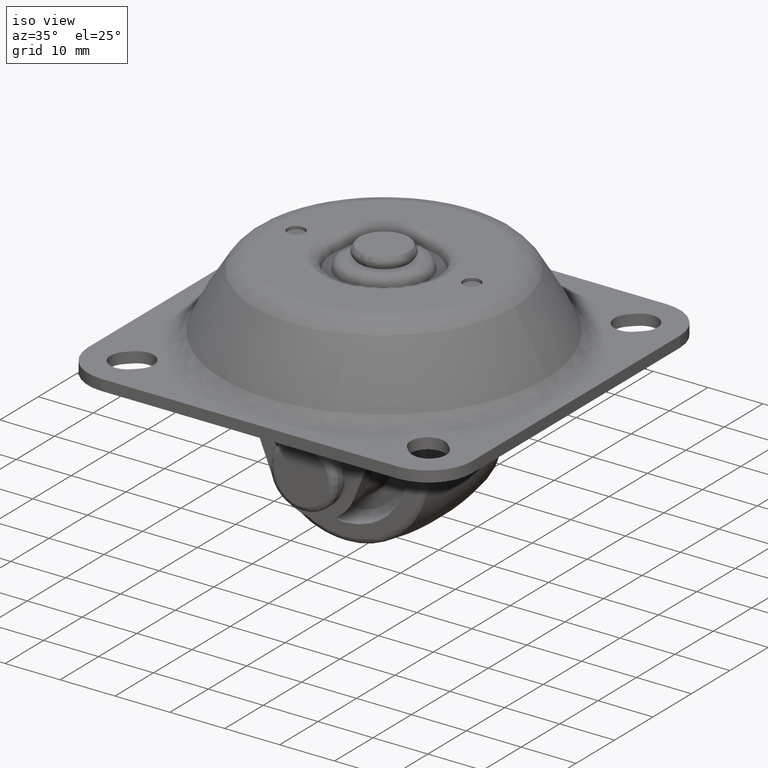
[diagram: clean part render]
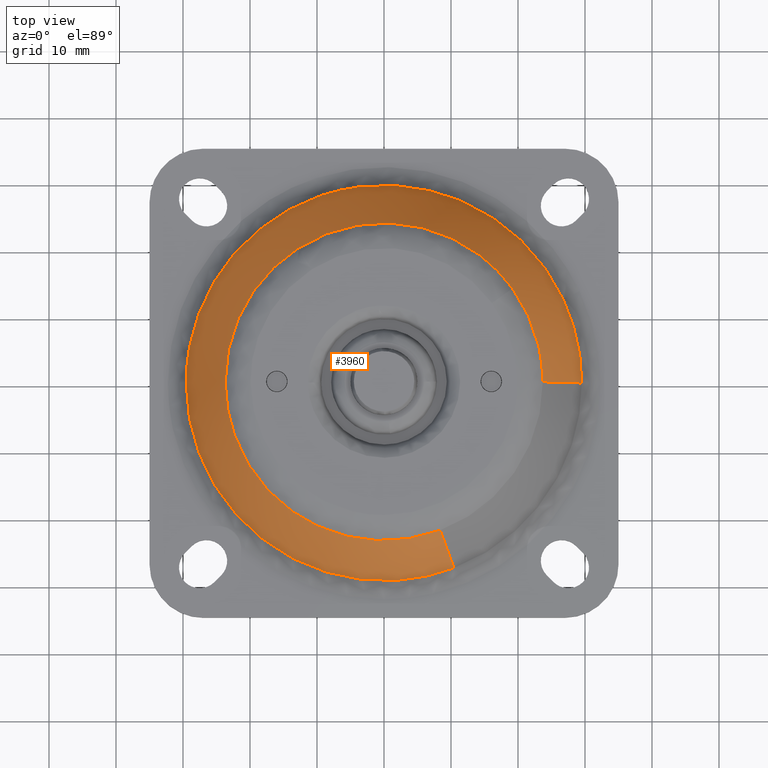
[diagram: tour spotlight — one face highlighted and labeled with its STEP entity id]
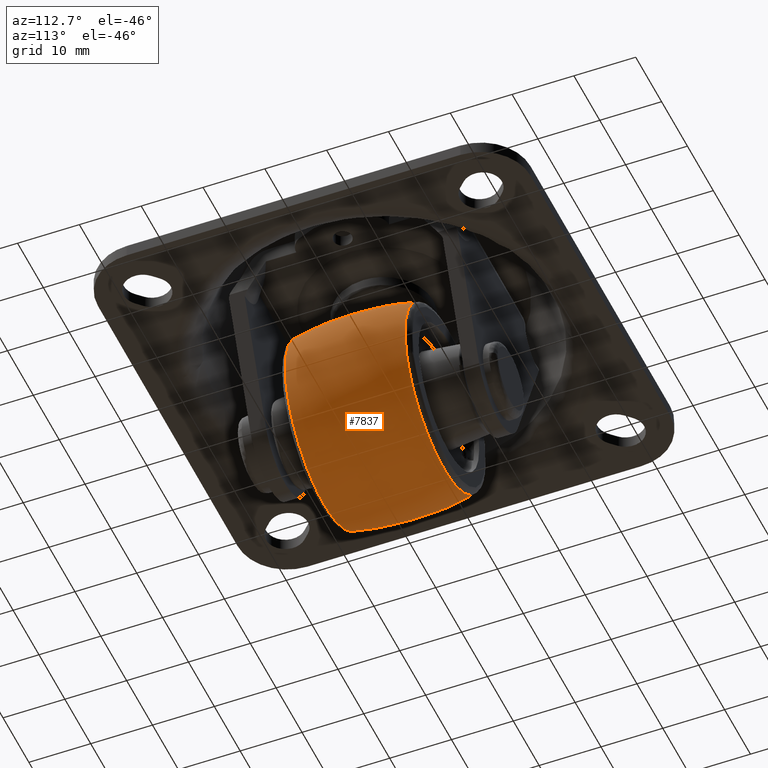
[diagram: tour spotlight — one face highlighted and labeled with its STEP entity id]
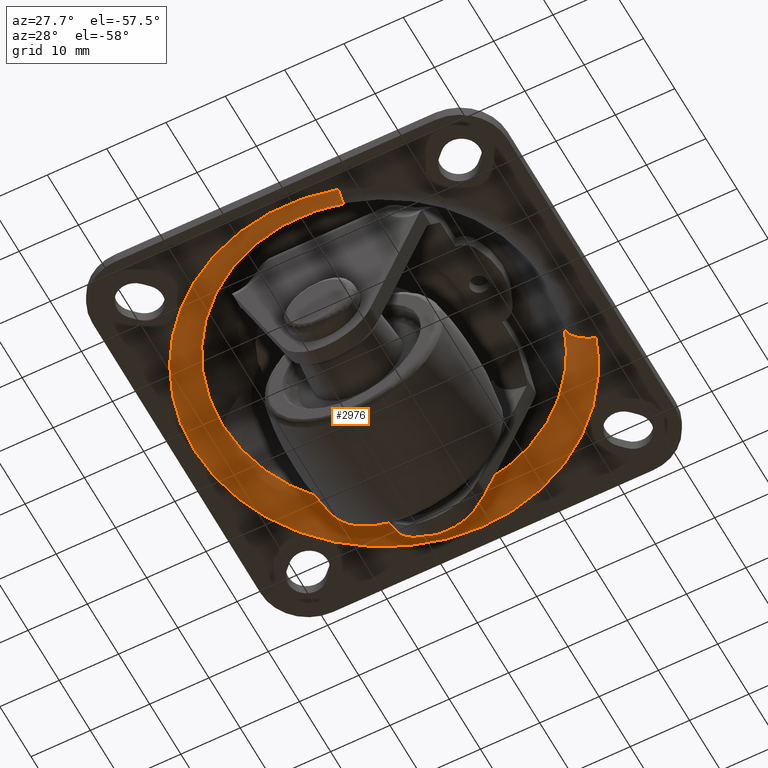
[diagram: tour spotlight — one face highlighted and labeled with its STEP entity id]
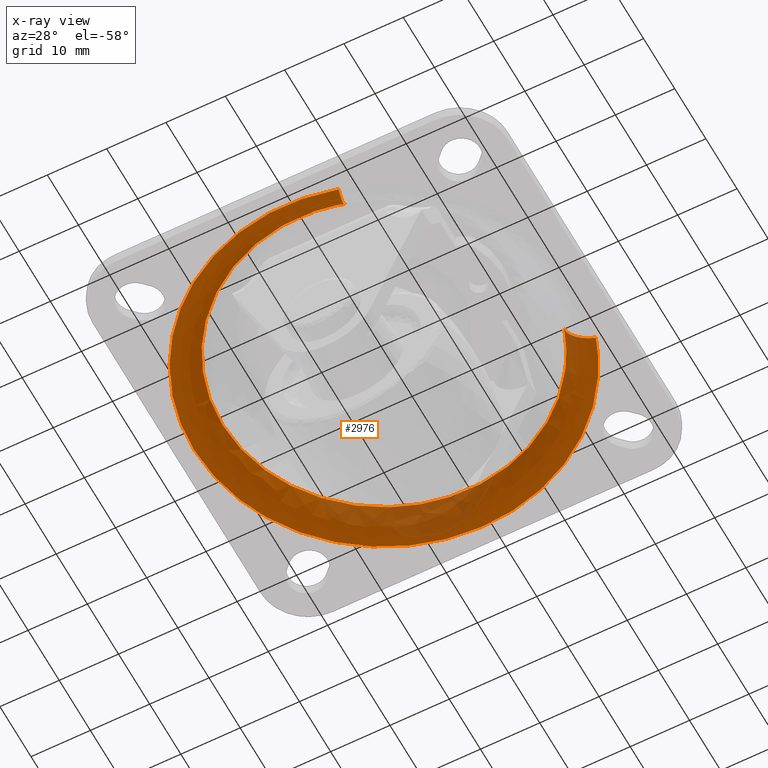
[diagram: x-ray of the same camera — body ghosted, this tour face saturated]
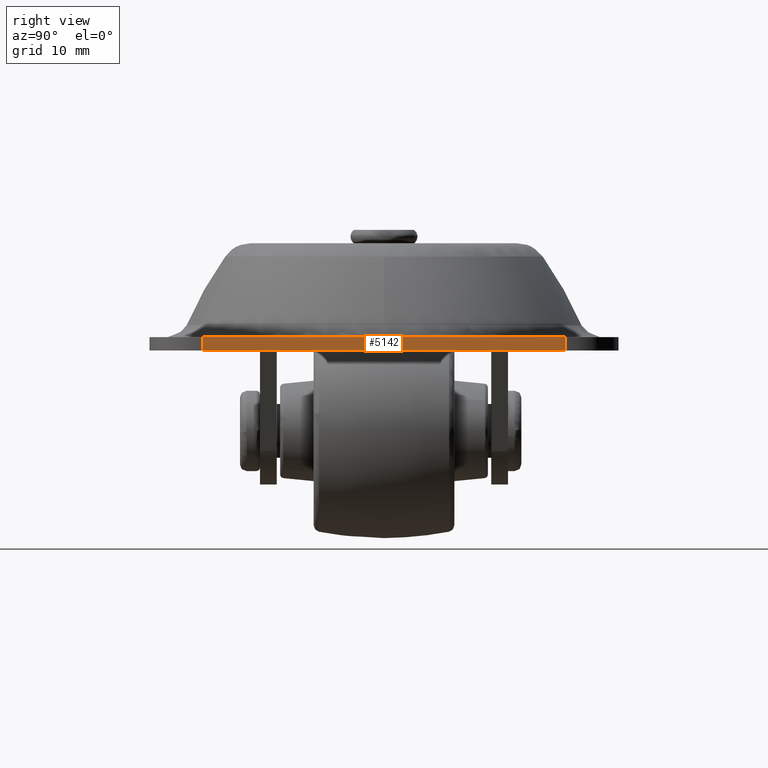
[diagram: tour spotlight — one face highlighted and labeled with its STEP entity id]
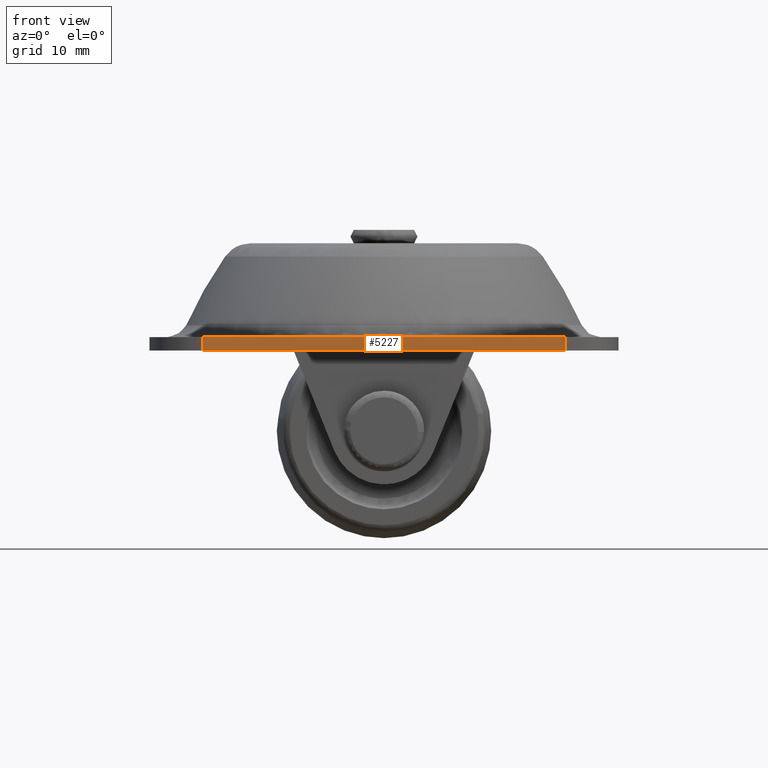
[diagram: tour spotlight — one face highlighted and labeled with its STEP entity id]
A machine part: a face-by-face anatomy tour. The part has 184 B-rep faces; the first image is the clean iso view, then the 5 largest visible faces are spotlighted one at a time (largest first), each with its STEP entity span.

Face 1 — top view, entity #3960. In plain terms, the highlighted face is a freeform B-spline surface patch.
Definition (entity closure, byte-faithful):
#2278=CARTESIAN_POINT('',(-12.814746471438600,19.944679892121378,26.026962958469110));
#2279=VERTEX_POINT('',#2278);
#2280=CARTESIAN_POINT('',(19.179129287009381,13.934453077141571,26.026962970549022));
#2281=VERTEX_POINT('',#2280);
#2282=CARTESIAN_POINT('',(-12.814746471438600,19.944679892121378,26.026962958469110));
#2283=CARTESIAN_POINT('',(-11.399841660080080,20.854147050903741,26.026962957915590));
#2284=CARTESIAN_POINT('',(-9.299466324523078,21.906507061518639,26.026962957369360));
#2285=CARTESIAN_POINT('',(-6.233534431240479,22.911781831508389,26.026962957063610));
#2286=CARTESIAN_POINT('',(-3.584441108219649,23.502309804431292,26.026962957056512));
#2287=CARTESIAN_POINT('',(-0.551372528046693,23.773684798666832,26.026962957423450));
#2288=CARTESIAN_POINT('',(2.955646143607061,23.609644243812671,26.026962958289410));
#2289=CARTESIAN_POINT('',(5.900150005857563,23.029452214701880,26.026962959426331));
#2290=CARTESIAN_POINT('',(8.650601101898888,22.112744179074429,26.026962960834808));
#2291=CARTESIAN_POINT('',(11.129714457171589,21.008013400750929,26.026962962362770));
#2292=CARTESIAN_POINT('',(13.487149254365461,19.564879212453882,26.026962964178121));
#2293=CARTESIAN_POINT('',(16.388732447240422,17.277719409135312,26.026962966886270));
#2294=CARTESIAN_POINT('',(18.108416497518281,15.408862076588051,26.026962968966359));
#2295=CARTESIAN_POINT('',(19.179129287009381,13.934453077141571,26.026962970549022));
#2296=B_SPLINE_CURVE_WITH_KNOTS('',3,(#2282,#2283,#2284,#2285,#2286,#2287,#2288,#2289,#2290,#2291,#2292,#2293,#2294,#2295),.UNSPECIFIED.,.F.,.U.,(4,1,1,1,1,1,1,1,1,1,1,4),(0.000000044672234,5.045872818593004,7.008171210059707,9.671289411017870,13.175396222911330,16.118843243847000,20.183528909106069,22.145827019844610,24.808954478988131,28.313052315303491,30.415505435606299,35.881880140197509),.UNSPECIFIED.);
#2297=EDGE_CURVE('',#2279,#2281,#2296,.T.);
#2380=CARTESIAN_POINT('',(-23.706707555652550,0.0,26.026962958384399));
#2381=VERTEX_POINT('',#2380);
#2382=CARTESIAN_POINT('',(-23.706707555652550,0.0,26.026962958384399));
#2383=CARTESIAN_POINT('',(-23.706809154230939,1.296077946736812,26.026962958384409));
#2384=CARTESIAN_POINT('',(-23.508813002978719,3.703039272591441,26.026962958385941));
#2385=CARTESIAN_POINT('',(-22.747500231845269,6.892571728340383,26.026962958391820));
#2386=CARTESIAN_POINT('',(-21.574038727750679,10.017258152530580,26.026962958400990));
#2387=CARTESIAN_POINT('',(-20.089515110318661,12.735559019980220,26.026962958412540));
#2388=CARTESIAN_POINT('',(-17.947350728257039,15.610187102045870,26.026962958429060));
#2389=CARTESIAN_POINT('',(-15.636008160558200,17.941823928240400,26.026962958447442));
#2390=CARTESIAN_POINT('',(-13.697461466469910,19.377550614174979,26.026962958461930));
#2391=CARTESIAN_POINT('',(-12.814746471438600,19.944679892121378,26.026962958469110));
#2392=B_SPLINE_CURVE_WITH_KNOTS('',3,(#2382,#2383,#2384,#2385,#2386,#2387,#2388,#2389,#2390,#2391),.UNSPECIFIED.,.F.,.U.,(4,1,1,1,1,1,1,4),(8.315840E-009,3.888222809079110,7.221004059536504,9.813167379961227,13.886519619920911,16.478682940345550,20.552072638058458,23.699686991565869),.UNSPECIFIED.);
#2393=EDGE_CURVE('',#2381,#2279,#2392,.T.);
#2395=CARTESIAN_POINT('',(8.375598990515535,-22.177826453349951,26.027003537547621));
#2396=VERTEX_POINT('',#2395);
#2397=CARTESIAN_POINT('',(8.375598990515535,-22.177826453349951,26.027003537547621));
#2398=CARTESIAN_POINT('',(7.259866313991982,-22.599263702841569,26.027002831976208));
#2399=CARTESIAN_POINT('',(4.907227992291301,-23.290036653473390,26.027001227137401));
#2400=CARTESIAN_POINT('',(1.052140564646334,-23.797862723480840,26.026998228176140));
#2401=CARTESIAN_POINT('',(-2.717392802082280,-23.651236627176122,26.026994915238369));
#2402=CARTESIAN_POINT('',(-5.999618674227792,-22.994852598450532,26.026991717774990));
#2403=CARTESIAN_POINT('',(-9.005893717107938,-22.005038875866610,26.026988559216900));
#2404=CARTESIAN_POINT('',(-11.752845322002440,-20.677642305191121,26.026985422876361));
#2405=CARTESIAN_POINT('',(-14.731898031312481,-18.684034627144690,26.026981693734349));
#2406=CARTESIAN_POINT('',(-17.214306946691341,-16.431500928184850,26.026978236458898));
#2407=CARTESIAN_POINT('',(-19.212918709000750,-13.974617569732320,26.026975072344499));
#2408=CARTESIAN_POINT('',(-20.919996499417859,-11.310141605037090,26.026972034922409));
#2409=CARTESIAN_POINT('',(-22.178295369728001,-8.594585097717165,26.026969351370461));
#2410=CARTESIAN_POINT('',(-23.131006702283919,-5.451317757732483,26.026966676308501));
#2411=CARTESIAN_POINT('',(-23.605826198907451,-2.743145092538184,26.026964667672829));
#2412=CARTESIAN_POINT('',(-23.706719233503279,-0.834862491443970,26.026963452310579));
#2413=CARTESIAN_POINT('',(-23.706707555652550,0.0,26.026962958384399));
#2414=B_SPLINE_CURVE_WITH_KNOTS('',3,(#2397,#2398,#2399,#2400,#2401,#2402,#2403,#2404,#2405,#2406,#2407,#2408,#2409,#2410,#2411,#2412,#2413),.UNSPECIFIED.,.F.,.U.,(4,1,1,1,1,1,1,1,1,1,1,1,1,1,4),(0.000000017786803,3.578018711368536,7.334973940711727,11.628636212129640,14.848884114467380,17.353503234740661,21.110485746047679,23.972841803344529,28.087621599785908,31.128949837978229,33.454689600705947,37.569438683884037,40.074079247458499,43.294337360693802,45.798932758562898),.UNSPECIFIED.);
#2415=EDGE_CURVE('',#2396,#2381,#2414,.T.);
#2417=CARTESIAN_POINT('',(23.706707534813990,0.0,26.026962988338688));
#2418=VERTEX_POINT('',#2417);
#2433=CARTESIAN_POINT('',(19.179129287009381,13.934453077141571,26.026962970549022));
#2434=CARTESIAN_POINT('',(20.091329297155191,12.679295898300300,26.026962972171528));
#2435=CARTESIAN_POINT('',(21.273554537562610,10.661512226014009,26.026962974769550));
#2436=CARTESIAN_POINT('',(22.593891008966359,7.383253572604097,26.026962978964828));
#2437=CARTESIAN_POINT('',(23.466429832310570,4.072904132199395,26.026962983181640));
#2438=CARTESIAN_POINT('',(23.706849535331571,1.435241015747134,26.026962986526151));
#2439=CARTESIAN_POINT('',(23.706707534813990,0.0,26.026962988338688));
#2440=B_SPLINE_CURVE_WITH_KNOTS('',3,(#2433,#2434,#2435,#2436,#2437,#2438,#2439),.UNSPECIFIED.,.F.,.U.,(4,1,1,1,4),(7.791625E-009,4.654808790815187,6.982221780988477,10.589682902542890,14.895378605375999),.UNSPECIFIED.);
#2441=EDGE_CURVE('',#2281,#2418,#2440,.T.);
#2526=CARTESIAN_POINT('',(26.704889106051859,12.566366947067291,15.769867219209480));
#2527=VERTEX_POINT('',#2526);
#2528=CARTESIAN_POINT('',(-9.398859040962224,27.977242843349931,15.769867695238990));
#2529=VERTEX_POINT('',#2528);
#2530=CARTESIAN_POINT('',(26.704889106051859,12.566366947067291,15.769867219209480));
#2531=CARTESIAN_POINT('',(26.062146822113071,13.932495768370361,15.769867255891180));
#2532=CARTESIAN_POINT('',(24.843275818079341,16.078067095498149,15.769867313953251));
#2533=CARTESIAN_POINT('',(22.765976469384430,18.858767003468259,15.769867390276080));
#2534=CARTESIAN_POINT('',(20.535906443037330,21.295925192515600,15.769867458052680));
#2535=CARTESIAN_POINT('',(17.816471655538329,23.635103704958361,15.769867524353749));
#2536=CARTESIAN_POINT('',(14.300809361433140,25.936691332179720,15.769867591400139));
#2537=CARTESIAN_POINT('',(10.484114045946210,27.708869060177580,15.769867645418881));
#2538=CARTESIAN_POINT('',(6.395170229576658,28.902664158991769,15.769867685081300));
#2539=CARTESIAN_POINT('',(2.904731130752902,29.431950726443770,15.769867706284730));
#2540=CARTESIAN_POINT('',(-0.563037837651208,29.569570359899409,15.769867717319951));
#2541=CARTESIAN_POINT('',(-4.587509849405022,29.282755800743551,15.769867718590790));
#2542=CARTESIAN_POINT('',(-7.649705162869902,28.565082512721609,15.769867706652979));
#2543=CARTESIAN_POINT('',(-9.398859040962224,27.977242843349931,15.769867695238990));
#2544=B_SPLINE_CURVE_WITH_KNOTS('',3,(#2530,#2531,#2532,#2533,#2534,#2535,#2536,#2537,#2538,#2539,#2540,#2541,#2542,#2543),.UNSPECIFIED.,.F.,.U.,(4,1,1,1,1,1,1,1,1,1,1,4),(0.000000034210657,4.529315999778127,7.381130818475945,10.400699983869041,14.426791052742320,18.117373475398612,22.982190972600339,27.008252113444101,30.866593468089391,33.550647482974682,37.408988837619930,42.944827289852221),.UNSPECIFIED.);
#2545=EDGE_CURVE('',#2527,#2529,#2544,.T.);
#2628=CARTESIAN_POINT('',(-29.513804708767601,0.0,15.769867695253300));
#2629=VERTEX_POINT('',#2628);
#2630=CARTESIAN_POINT('',(-9.398859040962224,27.977242843349931,15.769867695238990));
#2631=CARTESIAN_POINT('',(-10.897612673797520,27.473864636459840,15.769867695240080));
#2632=CARTESIAN_POINT('',(-13.062664963260630,26.546892910876650,15.769867695241579));
#2633=CARTESIAN_POINT('',(-16.176572984944769,24.748391874920220,15.769867695243841));
#2634=CARTESIAN_POINT('',(-18.588484799676721,23.004424581150470,15.769867695245530));
#2635=CARTESIAN_POINT('',(-21.427354502567191,20.422560253245269,15.769867695247459));
#2636=CARTESIAN_POINT('',(-23.629551053076838,17.814772652250252,15.769867695249371));
#2637=CARTESIAN_POINT('',(-25.539209810969489,14.881146251654970,15.769867695250349));
#2638=CARTESIAN_POINT('',(-27.141013699149561,11.820489947013909,15.769867695251660));
#2639=CARTESIAN_POINT('',(-28.469428554696439,8.160901605152231,15.769867695252660));
#2640=CARTESIAN_POINT('',(-29.327372676529190,4.024400069234487,15.769867695252920));
#2641=CARTESIAN_POINT('',(-29.513872544301190,1.389385063954212,15.769867695253639));
#2642=CARTESIAN_POINT('',(-29.513804708767601,0.0,15.769867695253300));
#2643=B_SPLINE_CURVE_WITH_KNOTS('',3,(#2630,#2631,#2632,#2633,#2634,#2635,#2636,#2637,#2638,#2639,#2640,#2641,#2642),.UNSPECIFIED.,.F.,.U.,(4,1,1,1,1,1,1,1,1,1,4),(0.000000027877192,4.743060173342869,7.042747854486130,10.779718413863570,13.654314984528870,18.541087287826681,20.984511149451230,24.146556527760168,28.889645552025751,32.626621689948522,36.794769704779753),.UNSPECIFIED.);
#2644=EDGE_CURVE('',#2529,#2629,#2643,.T.);
#2717=CARTESIAN_POINT('',(29.513805084109869,0.0,15.769866860375220));
#2718=VERTEX_POINT('',#2717);
#2719=CARTESIAN_POINT('',(29.513805084109869,0.0,15.769866860375220));
#2720=CARTESIAN_POINT('',(29.513878000029180,1.419786428104158,15.769866900537609));
#2721=CARTESIAN_POINT('',(29.352464892649529,3.650838084980651,15.769866963842141));
#2722=CARTESIAN_POINT('',(28.553630370082988,7.907177130950014,15.769867085199881));
#2723=CARTESIAN_POINT('',(27.597605424667901,10.670086990499341,15.769867164500100));
#2724=CARTESIAN_POINT('',(26.704889106051859,12.566366947067291,15.769867219209480));
#2725=B_SPLINE_CURVE_WITH_KNOTS('',3,(#2719,#2720,#2721,#2722,#2723,#2724),.UNSPECIFIED.,.F.,.U.,(4,1,1,4),(1.781542E-009,4.259352476794456,6.693261273479543,12.980874957889529),.UNSPECIFIED.);
#2726=EDGE_CURVE('',#2718,#2527,#2725,.T.);
#2728=CARTESIAN_POINT('',(10.427255878586360,-27.610431094556009,15.769909070707540));
#2729=VERTEX_POINT('',#2728);
#2745=CARTESIAN_POINT('',(-29.513804708767601,0.0,15.769867695253300));
#2746=CARTESIAN_POINT('',(-29.513906697731461,-1.633309240018671,15.769868486607100));
#2747=CARTESIAN_POINT('',(-29.238897963163751,-4.937030701457908,15.769870280203820));
#2748=CARTESIAN_POINT('',(-28.156692366689089,-9.159344543754383,15.769873084712829));
#2749=CARTESIAN_POINT('',(-26.818351543886688,-12.427341030890060,15.769875606342810));
#2750=CARTESIAN_POINT('',(-25.351785499035390,-15.224141997249051,15.769877989532921));
#2751=CARTESIAN_POINT('',(-23.591153587486239,-17.850807015517251,15.769880496408231));
#2752=CARTESIAN_POINT('',(-21.508833474319012,-20.276468800973561,15.769883131375590));
#2753=CARTESIAN_POINT('',(-19.418577486010641,-22.283976764419940,15.769885569287400));
#2754=CARTESIAN_POINT('',(-16.711087146923688,-24.433012120955659,15.769888508427590));
#2755=CARTESIAN_POINT('',(-13.354652531741319,-26.439605641727510,15.769891833425630));
#2756=CARTESIAN_POINT('',(-9.847365065400421,-27.887984872761830,15.769894993679429));
#2757=CARTESIAN_POINT('',(-6.812162062807977,-28.761903234247811,15.769897544668289));
#2758=CARTESIAN_POINT('',(-3.707599930069016,-29.346212470371441,15.769900003943469));
#2759=CARTESIAN_POINT('',(-0.367855872449164,-29.583524509408239,15.769902459930950));
#2760=CARTESIAN_POINT('',(3.382325198569396,-29.396596289514740,15.769904998047810));
#2761=CARTESIAN_POINT('',(6.937104339026487,-28.770548988004471,15.769907186421101));
#2762=CARTESIAN_POINT('',(9.350742074283511,-28.017007580818401,15.769908513131790));
#2763=CARTESIAN_POINT('',(10.427255878586360,-27.610431094556009,15.769909070707540));
#2764=B_SPLINE_CURVE_WITH_KNOTS('',3,(#2745,#2746,#2747,#2748,#2749,#2750,#2751,#2752,#2753,#2754,#2755,#2756,#2757,#2758,#2759,#2760,#2761,#2762,#2763),.UNSPECIFIED.,.F.,.U.,(4,1,1,1,1,1,1,1,1,1,1,1,1,1,1,1,4),(0.000000054723827,4.899917511250429,9.911253110368797,13.029402141959910,15.479379088816970,19.377076690394350,22.495218095169260,25.056572698352280,28.063349328710121,32.851887598443412,36.749597116070497,39.422292613739387,42.317719041131753,46.215410261909511,49.444937254408423,53.565356838816513,57.017558934343633),.UNSPECIFIED.);
#2765=EDGE_CURVE('',#2629,#2729,#2764,.T.);
#3901=CARTESIAN_POINT('',(10.511529589358224,-27.833510733366431,15.232875004853293));
#3902=CARTESIAN_POINT('',(9.587381691434871,-25.386456742089209,21.197625484907540));
#3903=CARTESIAN_POINT('',(8.255845357840022,-21.860677689866382,26.509523820718666));
#3904=CARTESIAN_POINT('',(5.430885496787706,-29.752253260087343,15.232875004853293));
#3905=CARTESIAN_POINT('',(4.953415365247581,-27.136508132315544,21.197625484907544));
#3906=CARTESIAN_POINT('',(4.265463978050121,-23.367674502029310,26.509523820718673));
#3907=CARTESIAN_POINT('',(0.0,-29.752253260087347,15.232875004853293));
#3908=CARTESIAN_POINT('',(0.0,-27.136508132315548,21.197625484907547));
#3909=CARTESIAN_POINT('',(0.0,-23.367674502029313,26.509523820718666));
#3910=CARTESIAN_POINT('',(-29.752253260087347,-29.752253260087347,15.232875004853300));
#3911=CARTESIAN_POINT('',(-27.136508132315541,-27.136508132315541,21.197625484907554));
#3912=CARTESIAN_POINT('',(-23.367674502029306,-23.367674502029306,26.509523820718666));
#3913=CARTESIAN_POINT('',(-29.752253260087347,0.0,15.232875004853293));
#3914=CARTESIAN_POINT('',(-27.136508132315548,0.0,21.197625484907547));
#3915=CARTESIAN_POINT('',(-23.367674502029313,0.0,26.509523820718666));
#3916=CARTESIAN_POINT('',(-29.752253260087347,29.752253260087347,15.232875004853300));
#3917=CARTESIAN_POINT('',(-27.136508132315541,27.136508132315541,21.197625484907554));
#3918=CARTESIAN_POINT('',(-23.367674502029306,23.367674502029306,26.509523820718666));
#3919=CARTESIAN_POINT('',(0.0,29.752253260087347,15.232875004853293));
#3920=CARTESIAN_POINT('',(0.0,27.136508132315548,21.197625484907547));
#3921=CARTESIAN_POINT('',(0.0,23.367674502029313,26.509523820718666));
#3922=CARTESIAN_POINT('',(29.752253260087347,29.752253260087347,15.232875004853300));
#3923=CARTESIAN_POINT('',(27.136508132315541,27.136508132315541,21.197625484907554));
#3924=CARTESIAN_POINT('',(23.367674502029306,23.367674502029306,26.509523820718666));
#3925=CARTESIAN_POINT('',(29.752253260087347,0.0,15.232875004853293));
#3926=CARTESIAN_POINT('',(27.136508132315548,0.0,21.197625484907547));
#3927=CARTESIAN_POINT('',(23.367674502029313,0.0,26.509523820718666));
#3935=(BOUNDED_SURFACE()B_SPLINE_SURFACE(2,2,((#3901,#3904,#3907,#3910,#3913,#3916,#3919,#3922,#3925),(#3902,#3905,#3908,#3911,#3914,#3917,#3920,#3923,#3926),(#3903,#3906,#3909,#3912,#3915,#3918,#3921,#3924,#3927)),.UNSPECIFIED.,.F.,.F.,.U.)B_SPLINE_SURFACE_WITH_KNOTS((3,3),(3,2,2,2,3),(0.0,12.992299025926620),(0.0,11.830835339027820,61.125982584977052,110.421129830926300,159.716277076875510),.UNSPECIFIED.)GEOMETRIC_REPRESENTATION_ITEM()RATIONAL_B_SPLINE_SURFACE(((0.830684907260452,0.864681436201390,0.930059376472424,0.657651292009783,0.930059376472424,0.657651292009783,0.930059376472424,0.657651292009783,0.930059376472424),(0.824794265425632,0.858549714537302,0.923464039752050,0.652987684690598,0.923464039752050,0.652987684690598,0.923464039752050,0.652987684690598,0.923464039752050),(0.827508281072232,0.861374803721736,0.926502731893860,0.655136364510010,0.926502731893860,0.655136364510010,0.926502731893860,0.655136364510010,0.926502731893860)))REPRESENTATION_ITEM('')SURFACE());
#3936=ORIENTED_EDGE('',*,*,#2765,.T.);
#3937=CARTESIAN_POINT('',(10.427255878586360,-27.610431094556009,15.769909070707540));
#3938=CARTESIAN_POINT('',(9.857353650159510,-26.101379885565049,19.358661610853819));
#3939=CARTESIAN_POINT('',(9.169512195908999,-24.280037000265740,22.797220737491980));
#3940=CARTESIAN_POINT('',(8.375598990515535,-22.177826453349951,26.027003537547621));
#3941=B_SPLINE_CURVE_WITH_KNOTS('',3,(#3937,#3938,#3939,#3940),.UNSPECIFIED.,.F.,.U.,(4,4),(3.742731E-010,11.803764584131960),.UNSPECIFIED.);
#3942=EDGE_CURVE('',#2729,#2396,#3941,.T.);
#3943=ORIENTED_EDGE('',*,*,#3942,.T.);
#3944=ORIENTED_EDGE('',*,*,#2415,.T.);
#3945=ORIENTED_EDGE('',*,*,#2393,.T.);
#3946=ORIENTED_EDGE('',*,*,#2297,.T.);
#3947=ORIENTED_EDGE('',*,*,#2441,.T.);
#3948=CARTESIAN_POINT('',(29.513805084109869,0.0,15.769866860375220));
#3949=CARTESIAN_POINT('',(27.900734123372882,0.0,19.358622151903631));
#3950=CARTESIAN_POINT('',(25.953826584511980,0.0,22.797175857496519));
#3951=CARTESIAN_POINT('',(23.706707534813990,0.0,26.026962988338688));
#3952=B_SPLINE_CURVE_WITH_KNOTS('',3,(#3948,#3949,#3950,#3951),.UNSPECIFIED.,.F.,.U.,(4,4),(3.729532E-010,11.803761470240300),.UNSPECIFIED.);
#3953=EDGE_CURVE('',#2718,#2418,#3952,.T.);
#3954=ORIENTED_EDGE('',*,*,#3953,.F.);
#3955=ORIENTED_EDGE('',*,*,#2726,.T.);
#3956=ORIENTED_EDGE('',*,*,#2545,.T.);
#3957=ORIENTED_EDGE('',*,*,#2644,.T.);
#3958=EDGE_LOOP('',(#3936,#3943,#3944,#3945,#3946,#3947,#3954,#3955,#3956,#3957));
#3959=FACE_OUTER_BOUND('',#3958,.T.);
#3960=ADVANCED_FACE('',(#3959),#3935,.T.);

Face 2 — auxiliary view, entity #7837. In plain terms, the highlighted face is a freeform B-spline surface patch.
Definition (entity closure, byte-faithful):
#6863=CARTESIAN_POINT('',(6.872038823820937,-9.693876424441140,-13.390907261239510));
#6864=VERTEX_POINT('',#6863);
#6876=CARTESIAN_POINT('',(14.818959812848121,-9.693872312912884,2.634318193206549));
#6877=VERTEX_POINT('',#6876);
#6878=CARTESIAN_POINT('',(6.872038823820937,-9.693876424441140,-13.390907261239510));
#6879=CARTESIAN_POINT('',(7.848439849132001,-9.693876296909982,-12.890025451512461));
#6880=CARTESIAN_POINT('',(9.607092107739002,-9.693876000532688,-11.728662484528380));
#6881=CARTESIAN_POINT('',(11.543111873032810,-9.693875498218219,-9.765784499550978));
#6882=CARTESIAN_POINT('',(12.955068142069271,-9.693874985315857,-7.764483289613079));
#6883=CARTESIAN_POINT('',(14.066265962679751,-9.693874424597830,-5.578866499944241));
#6884=CARTESIAN_POINT('',(14.858240663563951,-9.693873746359278,-2.938054053921780));
#6885=CARTESIAN_POINT('',(15.136075689789349,-9.693873015591942,-0.095716167761276));
#6886=CARTESIAN_POINT('',(14.976177670876440,-9.693872540510283,1.750345908800644));
#6887=CARTESIAN_POINT('',(14.818959812848121,-9.693872312912884,2.634318193206549));
#6888=B_SPLINE_CURVE_WITH_KNOTS('',3,(#6878,#6879,#6880,#6881,#6882,#6883,#6884,#6885,#6886,#6887),.UNSPECIFIED.,.F.,.U.,(4,1,1,1,1,1,1,4),(0.000000011870856,3.292110287452257,6.284943353231839,8.230299245268132,10.624522760937600,13.617366751590231,16.460568532751800,19.154103652517701),.UNSPECIFIED.);
#6889=EDGE_CURVE('',#6864,#6877,#6888,.T.);
#7002=CARTESIAN_POINT('',(0.0,-9.693868263003587,15.051280648714121));
#7003=VERTEX_POINT('',#7002);
#7004=CARTESIAN_POINT('',(14.818959812848121,-9.693872312912884,2.634318193206549));
#7005=CARTESIAN_POINT('',(14.632549931396900,-9.693872005297916,3.684039952417427));
#7006=CARTESIAN_POINT('',(14.149972598475120,-9.693871511766732,5.347366979820239));
#7007=CARTESIAN_POINT('',(13.009044636434909,-9.693870802642142,7.686513359332042));
#7008=CARTESIAN_POINT('',(11.836191586655371,-9.693870278616826,9.377664456830205));
#7009=CARTESIAN_POINT('',(10.480894648471910,-9.693869812633711,10.846054398102631));
#7010=CARTESIAN_POINT('',(8.887026578513742,-9.693869364068796,12.226735001678961));
#7011=CARTESIAN_POINT('',(7.043634684598252,-9.693868975121015,13.371558281071040));
#7012=CARTESIAN_POINT('',(4.799469031298132,-9.693868629049920,14.321639545002141));
#7013=CARTESIAN_POINT('',(2.569625261356669,-9.693868388656197,14.905457428660229));
#7014=CARTESIAN_POINT('',(0.847433549596500,-9.693868290609444,15.051346769589459));
#7015=CARTESIAN_POINT('',(0.0,-9.693868263003587,15.051280648714121));
#7016=B_SPLINE_CURVE_WITH_KNOTS('',3,(#7004,#7005,#7006,#7007,#7008,#7009,#7010,#7011,#7012,#7013,#7014,#7015),.UNSPECIFIED.,.F.,.U.,(4,1,1,1,1,1,1,1,1,4),(0.000000043272419,3.198378299277685,5.166632123938294,7.790970827797544,9.349171438086831,11.153341662861360,14.105721295225850,15.827937163985290,18.452275266993659,20.994569392728319),.UNSPECIFIED.);
#7017=EDGE_CURVE('',#6877,#7003,#7016,.T.);
#7019=CARTESIAN_POINT('',(-14.950616383888541,-9.693878072483688,1.737862784492544));
#7020=VERTEX_POINT('',#7019);
#7037=CARTESIAN_POINT('',(0.0,-9.693876087908871,-15.051287102300090));
#7038=VERTEX_POINT('',#7037);
#7039=CARTESIAN_POINT('',(-14.950616383888541,-9.693878072483688,1.737862784492544));
#7040=CARTESIAN_POINT('',(-15.065251365965601,-9.693878014279580,0.752925337206867));
#7041=CARTESIAN_POINT('',(-15.090827397801380,-9.693877915070216,-0.774683708162324));
#7042=CARTESIAN_POINT('',(-14.788738266019850,-9.693877750296151,-3.005013775607559));
#7043=CARTESIAN_POINT('',(-14.218482558901769,-9.693877575347212,-5.150876828347050));
#7044=CARTESIAN_POINT('',(-13.157832380034201,-9.693877359713142,-7.477170104620006));
#7045=CARTESIAN_POINT('',(-11.772540280474310,-9.693877147433947,-9.463490350311599));
#7046=CARTESIAN_POINT('',(-10.072804239359970,-9.693876928287724,-11.273952438314780));
#7047=CARTESIAN_POINT('',(-8.360843095850044,-9.693876740994373,-12.590381359595700));
#7048=CARTESIAN_POINT('',(-6.473410808016054,-9.693876562111363,-13.622981329819170));
#7049=CARTESIAN_POINT('',(-4.696275640348728,-9.693876409794749,-14.350834893272550));
#7050=CARTESIAN_POINT('',(-2.511960068570466,-9.693876244735865,-14.909375478392320));
#7051=CARTESIAN_POINT('',(-0.859364573763803,-9.693876138355558,-15.051355242945670));
#7052=CARTESIAN_POINT('',(0.0,-9.693876087908871,-15.051287102300090));
#7053=B_SPLINE_CURVE_WITH_KNOTS('',3,(#7039,#7040,#7041,#7042,#7043,#7044,#7045,#7046,#7047,#7048,#7049,#7050,#7051,#7052),.UNSPECIFIED.,.F.,.U.,(4,1,1,1,1,1,1,1,1,1,1,4),(0.000000065099112,2.974720064912674,4.561238533202786,6.742706002024306,9.618276271162221,12.196391756649151,13.981163288520470,17.055074854522690,18.641594148503501,20.426437004620830,22.806211367286089,25.384297495187049),.UNSPECIFIED.);
#7054=EDGE_CURVE('',#7020,#7038,#7053,.T.);
#7056=CARTESIAN_POINT('',(0.0,-9.693876087908871,-15.051287102300090));
#7057=CARTESIAN_POINT('',(0.780549595458753,-9.693876170352622,-15.051324739021030));
#7058=CARTESIAN_POINT('',(2.378806799834980,-9.693876309934117,-14.926710291207961));
#7059=CARTESIAN_POINT('',(4.698772343740774,-9.693876423547478,-14.366181685031171));
#7060=CARTESIAN_POINT('',(6.177612428536425,-9.693876434653291,-13.747319009472090));
#7061=CARTESIAN_POINT('',(6.872038823820937,-9.693876424441140,-13.390907261239510));
#7062=B_SPLINE_CURVE_WITH_KNOTS('',3,(#7056,#7057,#7058,#7059,#7060,#7061),.UNSPECIFIED.,.F.,.U.,(4,1,1,4),(5.730157E-009,2.341650829234921,4.794804836288558,7.136455659793228),.UNSPECIFIED.);
#7063=EDGE_CURVE('',#7038,#6864,#7062,.T.);
#7098=CARTESIAN_POINT('',(14.502569328657501,9.693874969176981,-4.027011010486102));
#7099=VERTEX_POINT('',#7098);
#7100=CARTESIAN_POINT('',(0.0,9.693870440239174,15.051283179990129));
#7101=VERTEX_POINT('',#7100);
#7102=CARTESIAN_POINT('',(14.502569328657501,9.693874969176981,-4.027011010486102));
#7103=CARTESIAN_POINT('',(14.657084112669430,9.693874835866739,-3.470587200263846));
#7104=CARTESIAN_POINT('',(14.940250499818490,9.693874522822544,-2.163265701093709));
#7105=CARTESIAN_POINT('',(15.105594995079709,9.693874030972523,-0.106747138940694));
#7106=CARTESIAN_POINT('',(14.945106662252339,9.693873461805326,2.276165672639027));
#7107=CARTESIAN_POINT('',(14.426556010620009,9.693872931525320,4.499539083680151));
#7108=CARTESIAN_POINT('',(13.613887612765090,9.693872452336722,6.511743294267473));
#7109=CARTESIAN_POINT('',(12.467262165217260,9.693871964402181,8.563499458927575));
#7110=CARTESIAN_POINT('',(10.803482961597471,9.693871474930655,10.626267870806281));
#7111=CARTESIAN_POINT('',(8.875258828570191,9.693871098228739,12.219531559807679));
#7112=CARTESIAN_POINT('',(7.150564091864982,9.693870848988933,13.277668153731881));
#7113=CARTESIAN_POINT('',(5.483965377734984,9.693870663808959,14.067255761266440));
#7114=CARTESIAN_POINT('',(3.067775045209139,9.693870486638819,14.829965878717340));
#7115=CARTESIAN_POINT('',(1.154981597799269,9.693870437733656,15.051537164846360));
#7116=CARTESIAN_POINT('',(0.0,9.693870440239174,15.051283179990129));
#7117=B_SPLINE_CURVE_WITH_KNOTS('',3,(#7102,#7103,#7104,#7105,#7106,#7107,#7108,#7109,#7110,#7111,#7112,#7113,#7114,#7115,#7116),.UNSPECIFIED.,.F.,.U.,(4,1,1,1,1,1,1,1,1,1,1,1,4),(0.000000079093304,1.732442286769306,4.006275988046468,6.171857384525850,8.878831671270618,10.827833763762751,12.668568535702940,15.916872646754269,18.732125858089109,20.139753427286081,21.980489081161370,24.254355676292981,27.719236497542099),.UNSPECIFIED.);
#7118=EDGE_CURVE('',#7099,#7101,#7117,.T.);
#7222=CARTESIAN_POINT('',(0.0,9.693877504636051,-15.051292745429789));
#7223=VERTEX_POINT('',#7222);
#7224=CARTESIAN_POINT('',(0.0,9.693877504636051,-15.051292745429789));
#7225=CARTESIAN_POINT('',(1.019066264983722,9.693877504673036,-15.051453663439140));
#7226=CARTESIAN_POINT('',(2.547578097198307,9.693877468787921,-14.895423500309031));
#7227=CARTESIAN_POINT('',(4.621659564933750,9.693877344997789,-14.357178970602330));
#7228=CARTESIAN_POINT('',(6.147213601133516,9.693877210682535,-13.773170577332190));
#7229=CARTESIAN_POINT('',(7.687945966273733,9.693877027402072,-12.976259516139020));
#7230=CARTESIAN_POINT('',(9.385813224977449,9.693876766526040,-11.841959479859209));
#7231=CARTESIAN_POINT('',(10.970719847716030,9.693876432760105,-10.390731496935130));
#7232=CARTESIAN_POINT('',(12.377918908155690,9.693876030132515,-8.640089898510992));
#7233=CARTESIAN_POINT('',(13.596220232897879,9.693875568026771,-6.630834828406504));
#7234=CARTESIAN_POINT('',(14.230063855115951,9.693875195015059,-5.008964371796827));
#7235=CARTESIAN_POINT('',(14.502569328657501,9.693874969176981,-4.027011010486102));
#7236=B_SPLINE_CURVE_WITH_KNOTS('',3,(#7224,#7225,#7226,#7227,#7228,#7229,#7230,#7231,#7232,#7233,#7234,#7235),.UNSPECIFIED.,.F.,.U.,(4,1,1,1,1,1,1,1,1,4),(4.611024E-009,3.057163530841979,4.585763181741360,6.420069592537349,7.948661688161238,9.782962204920366,12.534411477455871,14.368723633506470,16.508757530089198,19.565924405228639),.UNSPECIFIED.);
#7237=EDGE_CURVE('',#7223,#7099,#7236,.T.);
#7239=CARTESIAN_POINT('',(-14.950618883687040,9.693880315230611,1.737863089778862));
#7240=VERTEX_POINT('',#7239);
#7241=CARTESIAN_POINT('',(-14.950618883687040,9.693880315230611,1.737863089778862));
#7242=CARTESIAN_POINT('',(-15.049923693302819,9.693880243788504,0.884259767700132));
#7243=CARTESIAN_POINT('',(-15.094678065409740,9.693880108192618,-0.607878874494754));
#7244=CARTESIAN_POINT('',(-14.844840913040249,9.693879890908139,-2.712603406576308));
#7245=CARTESIAN_POINT('',(-14.342199993002270,9.693879660053179,-4.737551574913159));
#7246=CARTESIAN_POINT('',(-13.425723500950790,9.693879374630862,-6.978423375966237));
#7247=CARTESIAN_POINT('',(-12.107827114676910,9.693879071441543,-9.052119519891543));
#7248=CARTESIAN_POINT('',(-10.719928735200771,9.693878810545684,-10.610509416272320));
#7249=CARTESIAN_POINT('',(-9.291534723666681,9.693878572124799,-11.892109960452609));
#7250=CARTESIAN_POINT('',(-7.629291196027586,9.693878326345180,-13.044294498571430));
#7251=CARTESIAN_POINT('',(-5.779858540940476,9.693878088898607,-13.940532922195439));
#7252=CARTESIAN_POINT('',(-3.867562983447463,9.693877869524965,-14.587225701684201));
#7253=CARTESIAN_POINT('',(-2.016186462933639,9.693877680388562,-14.964313787113150));
#7254=CARTESIAN_POINT('',(-0.627985941612074,9.693877556847120,-15.051308509954270));
#7255=CARTESIAN_POINT('',(0.0,9.693877504636051,-15.051292745429789));
#7256=B_SPLINE_CURVE_WITH_KNOTS('',3,(#7241,#7242,#7243,#7244,#7245,#7246,#7247,#7248,#7249,#7250,#7251,#7252,#7253,#7254,#7255),.UNSPECIFIED.,.F.,.U.,(4,1,1,1,1,1,1,1,1,1,1,1,4),(0.000000065088109,2.578068780905937,4.462072520376140,6.346076957928862,8.825014745014737,11.700614143377431,13.683692115762460,15.071905478092759,17.451699411313051,19.732332560200220,21.219706657990660,23.500342833289320,25.384304977702591),.UNSPECIFIED.);
#7257=EDGE_CURVE('',#7240,#7223,#7256,.T.);
#7757=CARTESIAN_POINT('',(-14.750584785746167,-10.662376169074387,1.714628620443402));
#7758=CARTESIAN_POINT('',(-15.892982292882772,-5.393214894581345,1.847422815365253));
#7759=CARTESIAN_POINT('',(-15.892982292882781,0.0,1.847422815365253));
#7760=CARTESIAN_POINT('',(-15.892982292882778,5.393216140952452,1.847422815365252));
#7761=CARTESIAN_POINT('',(-14.750584263802999,10.662378576469706,1.714628559771856));
#7762=CARTESIAN_POINT('',(-14.849906280666378,-10.662376169074381,0.860188949577440));
#7763=CARTESIAN_POINT('',(-15.999996000000001,-5.393214894581343,0.926808835875327));
#7764=CARTESIAN_POINT('',(-15.999995999999999,0.0,0.926808835875327));
#7765=CARTESIAN_POINT('',(-15.999995999999998,5.393216140952453,0.926808835875327));
#7766=CARTESIAN_POINT('',(-14.849905755208757,10.662378576469701,0.860188919139878));
#7767=CARTESIAN_POINT('',(-14.849906280666383,-10.662376169074392,-0.000003999999991));
#7768=CARTESIAN_POINT('',(-15.999996000000001,-5.393214894581343,-0.000003999999991));
#7769=CARTESIAN_POINT('',(-15.999995999999999,0.0,-0.000003999999991));
#7770=CARTESIAN_POINT('',(-15.999995999999999,5.393216140952453,-0.000003999999991));
#7771=CARTESIAN_POINT('',(-14.849905755208770,10.662378576469708,-0.000003999999991));
#7772=CARTESIAN_POINT('',(-14.849906280666387,-10.662376169074385,-14.849910280666364));
#7773=CARTESIAN_POINT('',(-15.999995999999998,-5.393214894581343,-15.999999999999988));
#7774=CARTESIAN_POINT('',(-15.999996000000005,0.0,-15.999999999999986));
#7775=CARTESIAN_POINT('',(-15.999995999999998,5.393216140952454,-15.999999999999995));
#7776=CARTESIAN_POINT('',(-14.849905755208763,10.662378576469704,-14.849909755208746));
#7777=CARTESIAN_POINT('',(0.0,-10.662376169074392,-14.849910280666371));
#7778=CARTESIAN_POINT('',(0.0,-5.393214894581343,-15.999999999999996));
#7779=CARTESIAN_POINT('',(0.0,0.0,-15.999999999999989));
#7780=CARTESIAN_POINT('',(0.0,5.393216140952453,-15.999999999999995));
#7781=CARTESIAN_POINT('',(0.0,10.662378576469708,-14.849909755208754));
#7782=CARTESIAN_POINT('',(14.849906280666387,-10.662376169074385,-14.849910280666364));
#7783=CARTESIAN_POINT('',(15.999995999999998,-5.393214894581343,-15.999999999999988));
#7784=CARTESIAN_POINT('',(15.999996000000005,0.0,-15.999999999999986));
#7785=CARTESIAN_POINT('',(15.999995999999998,5.393216140952454,-15.999999999999995));
#7786=CARTESIAN_POINT('',(14.849905755208763,10.662378576469704,-14.849909755208746));
#7787=CARTESIAN_POINT('',(14.849906280666383,-10.662376169074392,-0.000003999999991));
#7788=CARTESIAN_POINT('',(15.999996000000001,-5.393214894581343,-0.000003999999991));
#7789=CARTESIAN_POINT('',(15.999995999999999,0.0,-0.000003999999991));
#7790=CARTESIAN_POINT('',(15.999995999999999,5.393216140952453,-0.000003999999991));
#7791=CARTESIAN_POINT('',(14.849905755208770,10.662378576469708,-0.000003999999991));
#7792=CARTESIAN_POINT('',(14.849906280666387,-10.662376169074385,14.849902280666392));
#7793=CARTESIAN_POINT('',(15.999995999999998,-5.393214894581343,15.999992000000020));
#7794=CARTESIAN_POINT('',(15.999996000000005,0.0,15.999992000000011));
#7795=CARTESIAN_POINT('',(15.999995999999998,5.393216140952454,15.999992000000015));
#7796=CARTESIAN_POINT('',(14.849905755208763,10.662378576469704,14.849901755208764));
#7797=CARTESIAN_POINT('',(0.0,-10.662376169074392,14.849902280666386));
#7798=CARTESIAN_POINT('',(0.0,-5.393214894581343,15.999992000000017));
#7799=CARTESIAN_POINT('',(0.0,0.0,15.999992000000010));
#7800=CARTESIAN_POINT('',(0.0,5.393216140952453,15.999992000000015));
#7801=CARTESIAN_POINT('',(0.0,10.662378576469708,14.849901755208773));
#7809=(BOUNDED_SURFACE()B_SPLINE_SURFACE(2,2,((#7757,#7762,#7767,#7772,#7777,#7782,#7787,#7792,#7797),(#7758,#7763,#7768,#7773,#7778,#7783,#7788,#7793,#7798),(#7759,#7764,#7769,#7774,#7779,#7784,#7789,#7794,#7799),(#7760,#7765,#7770,#7775,#7780,#7785,#7790,#7795,#7800),(#7761,#7766,#7771,#7776,#7781,#7786,#7791,#7796,#7801)),.UNSPECIFIED.,.F.,.F.,.U.)B_SPLINE_SURFACE_WITH_KNOTS((3,2,3),(3,2,2,2,3),(0.0,10.902413890243450,21.804830244560350),(0.0,2.120772466729182,28.630433831190270,55.140095195651362,81.649756560112451),.UNSPECIFIED.)GEOMETRIC_REPRESENTATION_ITEM()RATIONAL_B_SPLINE_SURFACE(((0.925862838381203,0.944907133885350,0.967578913346534,0.684181610960445,0.967578913346534,0.684181610960445,0.967578913346534,0.684181610960445,0.967578913346534),(0.935818432778061,0.955067507298876,0.977983071294026,0.691538461597652,0.977983071294026,0.691538461597652,0.977983071294026,0.691538461597652,0.977983071294026),(0.956886126402807,0.976568547383107,1.0,0.707106781186548,1.0,0.707106781186548,1.0,0.707106781186548,1.0),(0.935818428016515,0.955067502439389,0.977983066317942,0.691538458079030,0.977983066317942,0.691538458079030,0.977983066317942,0.691538458079030,0.977983066317942),(0.925862833881041,0.944907129292623,0.967578908643611,0.684181607634976,0.967578908643611,0.684181607634976,0.967578908643611,0.684181607634976,0.967578908643611)))REPRESENTATION_ITEM('')SURFACE());
#7810=ORIENTED_EDGE('',*,*,#7054,.F.);
#7811=CARTESIAN_POINT('',(-14.950616383888541,-9.693878072483688,1.737862784492544));
#7812=CARTESIAN_POINT('',(-15.518476472714349,-6.802806539181233,1.803871806374402));
#7813=CARTESIAN_POINT('',(-15.965855928247230,-2.593076371145450,1.855875956134240));
#7814=CARTESIAN_POINT('',(-15.837720010224880,3.914157101471722,1.840981224669121));
#7815=CARTESIAN_POINT('',(-15.391047773990120,7.450793659699394,1.789059289155357));
#7816=CARTESIAN_POINT('',(-14.950618883687040,9.693880315230611,1.737863089778862));
#7817=B_SPLINE_CURVE_WITH_KNOTS('',3,(#7811,#7812,#7813,#7814,#7815,#7816),.UNSPECIFIED.,.F.,.U.,(4,1,1,4),(1.951523E-009,8.841075057442533,12.651874764948090,19.511327089283100),.UNSPECIFIED.);
#7818=EDGE_CURVE('',#7020,#7240,#7817,.T.);
#7819=ORIENTED_EDGE('',*,*,#7818,.T.);
#7820=ORIENTED_EDGE('',*,*,#7257,.T.);
#7821=ORIENTED_EDGE('',*,*,#7237,.T.);
#7822=ORIENTED_EDGE('',*,*,#7118,.T.);
#7823=CARTESIAN_POINT('',(0.0,-9.693868263003587,15.051280648714121));
#7824=CARTESIAN_POINT('',(0.0,-7.450784869334108,15.494665437416311));
#7825=CARTESIAN_POINT('',(0.0,-3.055249791671768,16.053642204353089));
#7826=CARTESIAN_POINT('',(0.0,3.461734249705358,16.013897719766319));
#7827=CARTESIAN_POINT('',(0.0,7.650169984332016,15.455237715569860));
#7828=CARTESIAN_POINT('',(0.0,9.693870440239174,15.051283179990129));
#7829=B_SPLINE_CURVE_WITH_KNOTS('',3,(#7823,#7824,#7825,#7826,#7827,#7828),.UNSPECIFIED.,.F.,.U.,(4,1,1,4),(1.955449E-009,6.859445272106669,13.261589611770701,19.511307024066070),.UNSPECIFIED.);
#7830=EDGE_CURVE('',#7003,#7101,#7829,.T.);
#7831=ORIENTED_EDGE('',*,*,#7830,.F.);
#7832=ORIENTED_EDGE('',*,*,#7017,.F.);
#7833=ORIENTED_EDGE('',*,*,#6889,.F.);
#7834=ORIENTED_EDGE('',*,*,#7063,.F.);
#7835=EDGE_LOOP('',(#7810,#7819,#7820,#7821,#7822,#7831,#7832,#7833,#7834));
#7836=FACE_OUTER_BOUND('',#7835,.T.);
#7837=ADVANCED_FACE('',(#7836),#7809,.T.);

Face 3 — auxiliary view, entity #2976. An x-ray twin of the same camera follows (body ghosted, this face saturated) — the face is partly hidden behind the body. In plain terms, the highlighted face is a freeform B-spline surface patch.
Definition (entity closure, byte-faithful):
#2770=CARTESIAN_POINT('',(8.597732410264724,-31.126146761205334,12.008519875281108));
#2771=CARTESIAN_POINT('',(-20.796351354535961,-39.245444938185230,12.008519875281108));
#2772=CARTESIAN_POINT('',(-30.583474840686296,-10.363835268264269,12.008519875281115));
#2773=CARTESIAN_POINT('',(-40.947310108950568,20.219639572422025,12.008519875281110));
#2774=CARTESIAN_POINT('',(-10.363835268264271,30.583474840686296,12.008519875281115));
#2775=CARTESIAN_POINT('',(20.219639572422025,40.947310108950568,12.008519875281110));
#2776=CARTESIAN_POINT('',(30.583474840686296,10.363835268264273,12.008519875281115));
#2777=CARTESIAN_POINT('',(7.502928869592384,-27.162658011430992,11.768168714350153));
#2778=CARTESIAN_POINT('',(-18.148220660350852,-34.248074698761386,11.768168714350152));
#2779=CARTESIAN_POINT('',(-26.689087932148414,-9.044142702222750,11.768168714350153));
#2780=CARTESIAN_POINT('',(-35.733230634371161,17.644945229925661,11.768168714350150));
#2781=CARTESIAN_POINT('',(-9.044142702222750,26.689087932148414,11.768168714350153));
#2782=CARTESIAN_POINT('',(17.644945229925661,35.733230634371161,11.768168714350150));
#2783=CARTESIAN_POINT('',(26.689087932148414,9.044142702222750,11.768168714350153));
#2784=CARTESIAN_POINT('',(7.230516582172277,-26.176450900859514,15.758005004668124));
#2785=CARTESIAN_POINT('',(-17.489304870448176,-33.004614107493495,15.758005004668123));
#2786=CARTESIAN_POINT('',(-25.720074948136489,-8.715772855715031,15.758005004668124));
#2787=CARTESIAN_POINT('',(-34.435847803851502,17.004302092421458,15.758005004668121));
#2788=CARTESIAN_POINT('',(-8.715772855715033,25.720074948136489,15.758005004668124));
#2789=CARTESIAN_POINT('',(17.004302092421458,34.435847803851502,15.758005004668121));
#2790=CARTESIAN_POINT('',(25.720074948136489,8.715772855715034,15.758005004668124));
#2798=(BOUNDED_SURFACE()B_SPLINE_SURFACE(2,2,((#2770,#2777,#2784),(#2771,#2778,#2785),(#2772,#2779,#2786),(#2773,#2780,#2787),(#2774,#2781,#2788),(#2775,#2782,#2789),(#2776,#2783,#2790)),.UNSPECIFIED.,.F.,.F.,.U.)B_SPLINE_SURFACE_WITH_KNOTS((3,2,2,3),(3,3),(0.0,51.362636367660883,104.865382583974300,158.368128800287710),(0.0,7.177035650806130),.UNSPECIFIED.)GEOMETRIC_REPRESENTATION_ITEM()RATIONAL_B_SPLINE_SURFACE(((0.895330500331742,0.691634223275762,0.896856718743058),(0.658393757817062,0.508602862438719,0.659516083790213),(0.915933695333018,0.707549993783331,0.917495034825914),(0.647662927087231,0.500313398632693,0.648766960830392),(0.915933695333018,0.707549993783331,0.917495034825914),(0.647662927087231,0.500313398632693,0.648766960830392),(0.915933695333018,0.707549993783331,0.917495034825914)))REPRESENTATION_ITEM('')SURFACE());
#2799=CARTESIAN_POINT('',(7.251973211889927,-26.254129778693851,15.477938114708250));
#2800=VERTEX_POINT('',#2799);
#2801=CARTESIAN_POINT('',(-27.237296853164239,0.0,15.477942652900040));
#2802=VERTEX_POINT('',#2801);
#2803=CARTESIAN_POINT('',(7.251973211889927,-26.254129778693851,15.477938114708250));
#2804=CARTESIAN_POINT('',(5.490525339045376,-26.740977351484709,15.477938352650940));
#2805=CARTESIAN_POINT('',(2.580568767168092,-27.236592798646189,15.477938744697241));
#2806=CARTESIAN_POINT('',(-1.342649962736198,-27.264446955032088,15.477939271095240));
#2807=CARTESIAN_POINT('',(-4.916654246279531,-26.877390786711281,15.477939749245859));
#2808=CARTESIAN_POINT('',(-8.538568026664825,-25.973807660964070,15.477940232080959));
#2809=CARTESIAN_POINT('',(-12.523015203378090,-24.310514299206059,15.477940760986870));
#2810=CARTESIAN_POINT('',(-15.818090459528250,-22.290360602618080,15.477941196208929));
#2811=CARTESIAN_POINT('',(-18.431614490955649,-20.116422615925639,15.477941539481110));
#2812=CARTESIAN_POINT('',(-20.445694248603271,-18.065673921565310,15.477941802752831));
#2813=CARTESIAN_POINT('',(-22.572123895784792,-15.413322259709339,15.477942079066869));
#2814=CARTESIAN_POINT('',(-24.333183828126529,-12.421073817017120,15.477942305219131));
#2815=CARTESIAN_POINT('',(-25.627553761808031,-9.350481592338781,15.477942468499821));
#2816=CARTESIAN_POINT('',(-26.521502236364029,-6.480397431403439,15.477942578740210));
#2817=CARTESIAN_POINT('',(-27.105795653733018,-3.328579543595422,15.477942646490060));
#2818=CARTESIAN_POINT('',(-27.237315593133360,-1.044254573473444,15.477942656425510));
#2819=CARTESIAN_POINT('',(-27.237296853164239,0.0,15.477942652900040));
#2820=B_SPLINE_CURVE_WITH_KNOTS('',3,(#2803,#2804,#2805,#2806,#2807,#2808,#2809,#2810,#2811,#2812,#2813,#2814,#2815,#2816,#2817,#2818,#2819),.UNSPECIFIED.,.F.,.U.,(4,1,1,1,1,1,1,1,1,1,1,1,1,1,4),(0.000000011921543,5.482404183416307,8.810999076434463,11.748012796983639,16.251435063482859,19.971648871573940,24.670842970402369,27.803604034872599,30.153211962876959,33.286028155523432,37.985251177359807,40.530663714243587,43.271876116952669,46.992094329064876,50.124864865869043),.UNSPECIFIED.);
#2821=EDGE_CURVE('',#2800,#2802,#2820,.T.);
#2822=ORIENTED_EDGE('',*,*,#2821,.F.);
#2823=CARTESIAN_POINT('',(8.520049821626504,-30.844914508260882,12.0));
#2824=VERTEX_POINT('',#2823);
#2825=CARTESIAN_POINT('',(8.520049821626504,-30.844914508260882,12.0));
#2826=CARTESIAN_POINT('',(8.406341032712060,-30.433257540730349,11.999886050034441));
#2827=CARTESIAN_POINT('',(8.222679489260683,-29.768352437518029,12.088936822862170));
#2828=CARTESIAN_POINT('',(7.990678959617741,-28.928446961340420,12.392430351992081));
#2829=CARTESIAN_POINT('',(7.769358438598137,-28.127206042272650,12.828094748522981));
#2830=CARTESIAN_POINT('',(7.550670038065848,-27.335494120461529,13.499026408097890));
#2831=CARTESIAN_POINT('',(7.361576776076004,-26.650924708054362,14.454174391376590));
#2832=CARTESIAN_POINT('',(7.281247640848349,-26.360111231550761,15.133709130049120));
#2833=CARTESIAN_POINT('',(7.251973211889927,-26.254129778693851,15.477938114708250));
#2834=B_SPLINE_CURVE_WITH_KNOTS('',3,(#2825,#2826,#2827,#2828,#2829,#2830,#2831,#2832,#2833),.UNSPECIFIED.,.F.,.U.,(4,1,1,1,1,1,4),(0.000000063430122,1.281186229971035,2.069618166711392,2.759510605647824,4.089941376821683,5.223317869199195,6.307399468404249),.UNSPECIFIED.);
#2835=EDGE_CURVE('',#2824,#2800,#2834,.T.);
#2836=ORIENTED_EDGE('',*,*,#2835,.F.);
#2837=CARTESIAN_POINT('',(-32.0,0.0,12.0));
#2838=VERTEX_POINT('',#2837);
#2839=CARTESIAN_POINT('',(8.520049821626504,-30.844914508260882,12.0));
#2840=CARTESIAN_POINT('',(6.820120941786501,-31.314591219856670,11.999999999999989));
#2841=CARTESIAN_POINT('',(3.417989415884944,-31.957552290107429,12.000000000000020));
#2842=CARTESIAN_POINT('',(-1.580191762666555,-32.083023405706257,12.000000000000020));
#2843=CARTESIAN_POINT('',(-6.003802287628908,-31.523152856749821,11.999999999999980));
#2844=CARTESIAN_POINT('',(-9.868296184157263,-30.514635772380949,11.999999999999989));
#2845=CARTESIAN_POINT('',(-13.161909224199100,-29.236036852555049,12.000000000000020));
#2846=CARTESIAN_POINT('',(-15.275086916523749,-28.140949816604000,12.0));
#2847=CARTESIAN_POINT('',(-16.299388710217460,-27.538088613159299,12.0));
#2848=CARTESIAN_POINT('',(-16.430899640353260,-27.459197450203661,12.000000000000011));
#2849=CARTESIAN_POINT('',(-16.529697126706679,-27.400319993116849,12.0));
#2850=CARTESIAN_POINT('',(-16.923167670695129,-27.161899870809378,12.000000000000011));
#2851=CARTESIAN_POINT('',(-17.279560218860642,-26.936297520462801,12.000000000000011));
#2852=CARTESIAN_POINT('',(-17.631772602028050,-26.704330656711829,12.0));
#2853=CARTESIAN_POINT('',(-17.695557254235499,-26.661769287891371,12.0));
#2854=CARTESIAN_POINT('',(-17.823434928334731,-26.577110171790149,12.0));
#2855=CARTESIAN_POINT('',(-18.109485208261159,-26.384122705868101,12.0));
#2856=CARTESIAN_POINT('',(-18.424292391542942,-26.165236692742951,12.0));
#2857=CARTESIAN_POINT('',(-18.704849090781511,-25.964345425609189,12.0));
#2858=CARTESIAN_POINT('',(-18.828806260582422,-25.874045967000299,12.0));
#2859=CARTESIAN_POINT('',(-19.169504020907141,-25.625507800085391,12.0));
#2860=CARTESIAN_POINT('',(-19.505521381167132,-25.370600074018189,12.000000000000011));
#2861=CARTESIAN_POINT('',(-19.836946259549510,-25.109839999399760,12.0));
#2862=CARTESIAN_POINT('',(-19.926806578081880,-25.038058726512251,12.0));
#2863=CARTESIAN_POINT('',(-20.046924391724229,-24.942712124736961,12.000000000000011));
#2864=CARTESIAN_POINT('',(-20.374921991000630,-24.677598770820090,11.999999999999989));
#2865=CARTESIAN_POINT('',(-20.727632709363998,-24.382111235524839,12.0));
#2866=CARTESIAN_POINT('',(-21.046086110513681,-24.105604819110241,12.0));
#2867=CARTESIAN_POINT('',(-21.160998645596319,-24.004044245659159,12.0));
#2868=CARTESIAN_POINT('',(-21.247407270370609,-23.928138258830838,12.0));
#2869=CARTESIAN_POINT('',(-21.791200666525100,-23.443434101660600,11.999999999999980));
#2870=CARTESIAN_POINT('',(-22.319312282858832,-22.941212457328501,12.000000000000011));
#2871=CARTESIAN_POINT('',(-22.830718095968269,-22.422453848342311,12.0));
#2872=CARTESIAN_POINT('',(-22.910866476283040,-22.339968231481880,12.0));
#2873=CARTESIAN_POINT('',(-23.018029385342249,-22.230267568947699,12.0));
#2874=CARTESIAN_POINT('',(-24.479439184812399,-20.710077408008051,12.000000000000011));
#2875=CARTESIAN_POINT('',(-26.579547874015368,-18.050696996998450,12.0));
#2876=CARTESIAN_POINT('',(-28.996854039738039,-13.769320309948970,12.000000000000011));
#2877=CARTESIAN_POINT('',(-30.541250041142440,-9.873332882638167,12.0));
#2878=CARTESIAN_POINT('',(-31.242479761040592,-7.039866073001062,12.000000000000011));
#2879=CARTESIAN_POINT('',(-31.484739973103519,-5.720032951428039,12.0));
#2880=CARTESIAN_POINT('',(-31.504700772375941,-5.606766557408422,12.0));
#2881=CARTESIAN_POINT('',(-31.531747991825512,-5.455810424692682,12.0));
#2882=CARTESIAN_POINT('',(-31.654106808270789,-4.737697223486341,12.0));
#2883=CARTESIAN_POINT('',(-31.758559608784399,-3.977723137225266,12.0));
#2884=CARTESIAN_POINT('',(-31.834470375751771,-3.253225947318474,11.999999999999989));
#2885=CARTESIAN_POINT('',(-31.849151638773499,-3.100570654009919,12.000000000000080));
#2886=CARTESIAN_POINT('',(-31.860493366586159,-2.986119157255070,12.000000000000650));
#2887=CARTESIAN_POINT('',(-31.955188292271529,-1.955302477576776,11.999999999991710));
#2888=CARTESIAN_POINT('',(-32.000006119055392,-0.958484166725062,12.000000000017650));
#2889=CARTESIAN_POINT('',(-32.0,0.0,12.0));
#2890=B_SPLINE_CURVE_WITH_KNOTS('',3,(#2839,#2840,#2841,#2842,#2843,#2844,#2845,#2846,#2847,#2848,#2849,#2850,#2851,#2852,#2853,#2854,#2855,#2856,#2857,#2858,#2859,#2860,#2861,#2862,#2863,#2864,#2865,#2866,#2867,#2868,#2869,#2870,#2871,#2872,#2873,#2874,#2875,#2876,#2877,#2878,#2879,#2880,#2881,#2882,#2883,#2884,#2885,#2886,#2887,#2888,#2889),.UNSPECIFIED.,.F.,.U.,(4,1,1,1,1,1,1,1,1,1,1,2,1,1,1,1,1,1,1,1,1,1,1,1,1,1,1,1,1,1,1,1,1,1,1,1,1,1,1,1,1,1,1,1,1,1,1,4),(0.000157145432560,5.291001966385345,10.351823149021939,14.952572045780091,18.633167676503479,22.313768800537229,25.534307905527161,25.764346367551472,25.879365533310839,25.994384699070231,26.109377812959352,27.259569545411210,27.374590345005888,27.489611144600531,27.719652619901840,28.409775622489612,28.639815887903239,28.754835762272911,28.869855636642669,29.904970537765092,30.019961551233919,30.134981167546069,30.250000783858209,30.480040390569371,31.400201123253389,31.630241581789221,31.745261816448039,31.860282051106768,31.975281802334440,33.930627720238263,34.045623109073617,34.160642108735331,34.275661108397003,34.505699123967318,40.486681134033049,44.397322933629091,49.228111270571553,53.023740875308370,53.138736808825172,53.253756556325577,53.368776303825989,53.598815883313790,55.439132719430781,55.669171847178220,55.784191283295307,55.899210719412402,56.014206768346163,58.889660562029050),.UNSPECIFIED.);
#2891=EDGE_CURVE('',#2824,#2838,#2890,.T.);
#2892=ORIENTED_EDGE('',*,*,#2891,.T.);
#2893=CARTESIAN_POINT('',(30.307145759708199,10.270195513809400,12.0));
#2894=VERTEX_POINT('',#2893);
#2895=CARTESIAN_POINT('',(-32.0,0.0,12.0));
#2896=CARTESIAN_POINT('',(-32.000232217152003,1.993868847980252,11.999999999999989));
#2897=CARTESIAN_POINT('',(-31.719518726520349,4.984551695972015,12.000000000000030));
#2898=CARTESIAN_POINT('',(-30.700033903142302,9.267951402123771,11.999999999999980));
#2899=CARTESIAN_POINT('',(-29.582768499883532,12.363670786445480,11.999999999999959));
#2900=CARTESIAN_POINT('',(-27.885403879744910,15.845766178835360,12.000000000000121));
#2901=CARTESIAN_POINT('',(-25.952677636659271,18.867637129315991,11.999999999999810));
#2902=CARTESIAN_POINT('',(-23.657369292476879,21.617762387695539,12.000000000000121));
#2903=CARTESIAN_POINT('',(-21.241774308844182,24.016408688646081,12.000000000000350));
#2904=CARTESIAN_POINT('',(-18.763428557857569,25.998739277118140,11.999999999999011));
#2905=CARTESIAN_POINT('',(-15.645270368772531,27.986170633027822,12.000000000001220));
#2906=CARTESIAN_POINT('',(-12.959861074732499,29.317469492098081,11.999999999999600));
#2907=CARTESIAN_POINT('',(-9.721509737289532,30.541140840400541,12.000000000000201));
#2908=CARTESIAN_POINT('',(-6.942832259619093,31.295428748750339,11.999999999999771));
#2909=CARTESIAN_POINT('',(-3.700163098349872,31.829895967801090,12.000000000000441));
#2910=CARTESIAN_POINT('',(-0.186072916473823,32.085734168766002,11.999999999999870));
#2911=CARTESIAN_POINT('',(3.571982650421286,31.883357753219212,11.999999999999639));
#2912=CARTESIAN_POINT('',(7.039526387576758,31.261231722532148,12.000000000000581));
#2913=CARTESIAN_POINT('',(10.208831257942910,30.390241848451709,12.000000000000171));
#2914=CARTESIAN_POINT('',(13.328260621739259,29.170727112647210,11.999999999997639));
#2915=CARTESIAN_POINT('',(16.699500721463998,27.380658344583001,12.000000000001490));
#2916=CARTESIAN_POINT('',(19.892482990139939,25.179460989726749,11.999999999999160));
#2917=CARTESIAN_POINT('',(22.600944504792238,22.741957930710431,12.000000000000270));
#2918=CARTESIAN_POINT('',(25.069073084806000,19.988575476872882,12.000000000000060));
#2919=CARTESIAN_POINT('',(26.888014274116721,17.459991998950290,11.999999999999639));
#2920=CARTESIAN_POINT('',(28.809733285128988,14.097019822500750,12.000000000001020));
#2921=CARTESIAN_POINT('',(29.780249124663921,11.825358057097960,11.999999999998680));
#2922=CARTESIAN_POINT('',(30.307145759708199,10.270195513809400,12.0));
#2923=B_SPLINE_CURVE_WITH_KNOTS('',3,(#2895,#2896,#2897,#2898,#2899,#2900,#2901,#2902,#2903,#2904,#2905,#2906,#2907,#2908,#2909,#2910,#2911,#2912,#2913,#2914,#2915,#2916,#2917,#2918,#2919,#2920,#2921,#2922),.UNSPECIFIED.,.F.,.U.,(4,1,1,1,1,1,1,1,1,1,1,1,1,1,1,1,1,1,1,1,1,1,1,1,1,4),(0.000000074718699,5.981547048924853,8.972358379912450,13.194702393070100,15.833626157082680,20.583740217462580,23.926406302997890,26.565344287760841,30.787674765344530,33.426599010828632,37.648911652651329,39.760077608274649,43.806425176930091,46.269415253801270,49.612041414691468,54.362181793117671,57.528913005315061,60.167834576622980,64.214234937557706,67.556894440832366,71.603272704741244,75.825602748031315,78.464526601195061,82.686839341091314,85.149886193210492,90.075858004027182),.UNSPECIFIED.);
#2924=EDGE_CURVE('',#2838,#2894,#2923,.T.);
#2925=ORIENTED_EDGE('',*,*,#2924,.T.);
#2926=CARTESIAN_POINT('',(25.796399083944529,8.741636848446021,15.477939536044589));
#2927=VERTEX_POINT('',#2926);
#2928=CARTESIAN_POINT('',(30.307145759708199,10.270195513809400,12.0));
#2929=CARTESIAN_POINT('',(29.964898017556749,10.154217874279160,11.999937262878490));
#2930=CARTESIAN_POINT('',(29.373777177179019,9.953904500951886,12.067976275335770));
#2931=CARTESIAN_POINT('',(28.552757627420309,9.675685253134290,12.332035613982740));
#2932=CARTESIAN_POINT('',(27.698624438507160,9.386244772180559,12.776723608680649));
#2933=CARTESIAN_POINT('',(26.978208810891680,9.142117218715852,13.391912619128840));
#2934=CARTESIAN_POINT('',(26.259029645032861,8.898408665580208,14.323647916577590));
#2935=CARTESIAN_POINT('',(25.943000479888131,8.791315726516839,14.992811392737719));
#2936=CARTESIAN_POINT('',(25.796399083944529,8.741636848446021,15.477939536044589));
#2937=B_SPLINE_CURVE_WITH_KNOTS('',3,(#2928,#2929,#2930,#2931,#2932,#2933,#2934,#2935,#2936),.UNSPECIFIED.,.F.,.U.,(4,1,1,1,1,1,4),(0.000000063429590,1.084081920566816,1.872514044901878,2.710214012607751,4.089942349928748,4.779827581069274,6.307400969114347),.UNSPECIFIED.);
#2938=EDGE_CURVE('',#2894,#2927,#2937,.T.);
#2939=ORIENTED_EDGE('',*,*,#2938,.T.);
#2940=CARTESIAN_POINT('',(-3.144913205751194,27.055121077913491,15.477959111377990));
#2941=VERTEX_POINT('',#2940);
#2942=CARTESIAN_POINT('',(-3.144913205751194,27.055121077913491,15.477959111377990));
#2943=CARTESIAN_POINT('',(-1.516233006545467,27.244582512655821,15.477958485795201));
#2944=CARTESIAN_POINT('',(1.484978809169513,27.320672161561639,15.477957226488300));
#2945=CARTESIAN_POINT('',(6.082521263233228,26.676404702115221,15.477955000512519));
#2946=CARTESIAN_POINT('',(10.287041760374340,25.357838389434079,15.477952680248190));
#2947=CARTESIAN_POINT('',(14.079545483897290,23.425415598005060,15.477950297435930));
#2948=CARTESIAN_POINT('',(16.883025381491681,21.446532531564731,15.477948321273800));
#2949=CARTESIAN_POINT('',(19.265337696601229,19.330891344330372,15.477946472640340));
#2950=CARTESIAN_POINT('',(21.535571034346098,16.823232499481570,15.477944519193620));
#2951=CARTESIAN_POINT('',(23.948366530383598,13.258155485339611,15.477942091948030));
#2952=CARTESIAN_POINT('',(25.239371734834162,10.385970335025609,15.477940416845311));
#2953=CARTESIAN_POINT('',(25.796399083944529,8.741636848446021,15.477939536044589));
#2954=B_SPLINE_CURVE_WITH_KNOTS('',3,(#2942,#2943,#2944,#2945,#2946,#2947,#2948,#2949,#2950,#2951,#2952,#2953),.UNSPECIFIED.,.F.,.U.,(4,1,1,1,1,1,1,1,1,4),(0.000000034178797,4.918980222944462,8.969923908506225,13.888929653018630,18.084538020258680,21.701412046308970,24.160923385878441,27.633154490861020,31.828770495217562,37.037108115042138),.UNSPECIFIED.);
#2955=EDGE_CURVE('',#2941,#2927,#2954,.T.);
#2956=ORIENTED_EDGE('',*,*,#2955,.F.);
#2957=CARTESIAN_POINT('',(-27.237296853164239,0.0,15.477942652900040));
#2958=CARTESIAN_POINT('',(-27.237346493415892,1.341717821642296,15.477943108110679));
#2959=CARTESIAN_POINT('',(-27.023422284492248,4.231570941446191,15.477944153229590));
#2960=CARTESIAN_POINT('',(-26.018761302147379,8.464545765993844,15.477945892956919));
#2961=CARTESIAN_POINT('',(-24.454168282989531,12.187027712424200,15.477947628653990));
#2962=CARTESIAN_POINT('',(-22.822188833239199,14.945025327692839,15.477949057475371));
#2963=CARTESIAN_POINT('',(-21.116182685163750,17.280407670662751,15.477950365274671));
#2964=CARTESIAN_POINT('',(-18.970736686126202,19.662387051912070,15.477951821653059));
#2965=CARTESIAN_POINT('',(-16.242582540023928,21.965678930868290,15.477953427387311));
#2966=CARTESIAN_POINT('',(-13.278403192375039,23.855523804657299,15.477954964156041));
#2967=CARTESIAN_POINT('',(-10.250067491105430,25.311780594888180,15.477956373198101));
#2968=CARTESIAN_POINT('',(-6.866469678478220,26.445030083740701,15.477957779984189));
#2969=CARTESIAN_POINT('',(-4.426399867177895,26.906213676562420,15.477958673678630));
#2970=CARTESIAN_POINT('',(-3.144913205751194,27.055121077913491,15.477959111377990));
#2971=B_SPLINE_CURVE_WITH_KNOTS('',3,(#2957,#2958,#2959,#2960,#2961,#2962,#2963,#2964,#2965,#2966,#2967,#2968,#2969,#2970),.UNSPECIFIED.,.F.,.U.,(4,1,1,1,1,1,1,1,1,1,1,4),(0.000000037543728,4.025158858384486,8.669576525990440,13.004377276032150,16.100651753305101,18.268068205078361,21.673937782302701,25.699098889819581,28.950192335024060,32.201295381747833,35.762028228889633,39.632352594283027),.UNSPECIFIED.);
#2972=EDGE_CURVE('',#2802,#2941,#2971,.T.);
#2973=ORIENTED_EDGE('',*,*,#2972,.F.);
#2974=EDGE_LOOP('',(#2822,#2836,#2892,#2925,#2939,#2956,#2973));
#2975=FACE_OUTER_BOUND('',#2974,.T.);
#2976=ADVANCED_FACE('',(#2975),#2798,.T.);

Face 4 — right view, entity #5142. In plain terms, the highlighted face is a freeform B-spline surface patch.
Definition (entity closure, byte-faithful):
#5074=CARTESIAN_POINT('',(35.0,27.000003999999951,12.0));
#5075=VERTEX_POINT('',#5074);
#5091=CARTESIAN_POINT('',(35.0,27.000003999999951,14.0));
#5092=VERTEX_POINT('',#5091);
#5107=CARTESIAN_POINT('',(35.0,27.000003999999951,14.0));
#5108=CARTESIAN_POINT('',(35.0,27.000003999999951,12.0));
#5109=QUASI_UNIFORM_CURVE('',1,(#5107,#5108),.UNSPECIFIED.,.F.,.U.);
#5110=EDGE_CURVE('',#5092,#5075,#5109,.T.);
#5115=CARTESIAN_POINT('',(35.0,-29.697304258814370,11.900100003876391));
#5116=CARTESIAN_POINT('',(35.0,-29.697304258814370,14.099900049767800));
#5117=CARTESIAN_POINT('',(35.0,29.697305741611991,11.900100003876391));
#5118=CARTESIAN_POINT('',(35.0,29.697305741611991,14.099900049767800));
#5119=B_SPLINE_SURFACE_WITH_KNOTS('',1,1,((#5115,#5117),(#5116,#5118)),.UNSPECIFIED.,.F.,.F.,.U.,(2,2),(2,2),(0.0,2.199800045891410),(0.0,59.394610000426383),.UNSPECIFIED.);
#5120=CARTESIAN_POINT('',(35.0,-27.000003000000000,12.0));
#5121=VERTEX_POINT('',#5120);
#5122=CARTESIAN_POINT('',(35.0,-27.000003000000000,12.0));
#5123=CARTESIAN_POINT('',(35.0,27.000003999999951,12.0));
#5124=QUASI_UNIFORM_CURVE('',1,(#5122,#5123),.UNSPECIFIED.,.F.,.U.);
#5125=EDGE_CURVE('',#5121,#5075,#5124,.T.);
#5126=ORIENTED_EDGE('',*,*,#5125,.T.);
#5127=ORIENTED_EDGE('',*,*,#5110,.F.);
#5128=CARTESIAN_POINT('',(35.0,-27.000003000000000,14.0));
#5129=VERTEX_POINT('',#5128);
#5130=CARTESIAN_POINT('',(35.0,-27.000003000000000,14.0));
#5131=CARTESIAN_POINT('',(35.0,27.000003999999951,14.0));
#5132=QUASI_UNIFORM_CURVE('',1,(#5130,#5131),.UNSPECIFIED.,.F.,.U.);
#5133=EDGE_CURVE('',#5129,#5092,#5132,.T.);
#5134=ORIENTED_EDGE('',*,*,#5133,.F.);
#5135=CARTESIAN_POINT('',(35.0,-27.000003000000000,14.0));
#5136=CARTESIAN_POINT('',(35.0,-27.000003000000000,12.0));
#5137=QUASI_UNIFORM_CURVE('',1,(#5135,#5136),.UNSPECIFIED.,.F.,.U.);
#5138=EDGE_CURVE('',#5129,#5121,#5137,.T.);
#5139=ORIENTED_EDGE('',*,*,#5138,.T.);
#5140=EDGE_LOOP('',(#5126,#5127,#5134,#5139));
#5141=FACE_OUTER_BOUND('',#5140,.T.);
#5142=ADVANCED_FACE('',(#5141),#5119,.F.);

Face 5 — front view, entity #5227. In plain terms, the highlighted face is a freeform B-spline surface patch.
Definition (entity closure, byte-faithful):
#5157=CARTESIAN_POINT('',(27.0,-35.000003000000000,12.0));
#5158=VERTEX_POINT('',#5157);
#5175=CARTESIAN_POINT('',(27.0,-35.000003000000000,14.0));
#5176=VERTEX_POINT('',#5175);
#5192=CARTESIAN_POINT('',(27.0,-35.000003000000000,14.0));
#5193=CARTESIAN_POINT('',(27.0,-35.000003000000000,12.0));
#5194=QUASI_UNIFORM_CURVE('',1,(#5192,#5193),.UNSPECIFIED.,.F.,.U.);
#5195=EDGE_CURVE('',#5176,#5158,#5194,.T.);
#5200=CARTESIAN_POINT('',(-29.697300255650259,-35.000003000000000,11.900100003876391));
#5201=CARTESIAN_POINT('',(-29.697300255650259,-35.000003000000000,14.099900049767800));
#5202=CARTESIAN_POINT('',(29.697301360871791,-35.000003000000000,11.900100003876391));
#5203=CARTESIAN_POINT('',(29.697301360871791,-35.000003000000000,14.099900049767800));
#5204=B_SPLINE_SURFACE_WITH_KNOTS('',1,1,((#5200,#5202),(#5201,#5203)),.UNSPECIFIED.,.F.,.F.,.U.,(2,2),(2,2),(0.0,2.199800045891410),(0.0,59.394601616522060),.UNSPECIFIED.);
#5205=CARTESIAN_POINT('',(-26.999999860373698,-35.000003000000000,12.0));
#5206=VERTEX_POINT('',#5205);
#5207=CARTESIAN_POINT('',(-26.999999860373698,-35.000003000000000,12.0));
#5208=CARTESIAN_POINT('',(27.0,-35.000003000000000,12.0));
#5209=QUASI_UNIFORM_CURVE('',1,(#5207,#5208),.UNSPECIFIED.,.F.,.U.);
#5210=EDGE_CURVE('',#5206,#5158,#5209,.T.);
#5211=ORIENTED_EDGE('',*,*,#5210,.T.);
#5212=ORIENTED_EDGE('',*,*,#5195,.F.);
#5213=CARTESIAN_POINT('',(-26.999999860373698,-35.000003000000000,14.0));
#5214=VERTEX_POINT('',#5213);
#5215=CARTESIAN_POINT('',(-26.999999860373698,-35.000003000000000,14.0));
#5216=CARTESIAN_POINT('',(27.0,-35.000003000000000,14.0));
#5217=QUASI_UNIFORM_CURVE('',1,(#5215,#5216),.UNSPECIFIED.,.F.,.U.);
#5218=EDGE_CURVE('',#5214,#5176,#5217,.T.);
#5219=ORIENTED_EDGE('',*,*,#5218,.F.);
#5220=CARTESIAN_POINT('',(-26.999999860373698,-35.000003000000000,14.0));
#5221=CARTESIAN_POINT('',(-26.999999860373698,-35.000003000000000,12.0));
#5222=QUASI_UNIFORM_CURVE('',1,(#5220,#5221),.UNSPECIFIED.,.F.,.U.);
#5223=EDGE_CURVE('',#5214,#5206,#5222,.T.);
#5224=ORIENTED_EDGE('',*,*,#5223,.T.);
#5225=EDGE_LOOP('',(#5211,#5212,#5219,#5224));
#5226=FACE_OUTER_BOUND('',#5225,.T.);
#5227=ADVANCED_FACE('',(#5226),#5204,.F.);